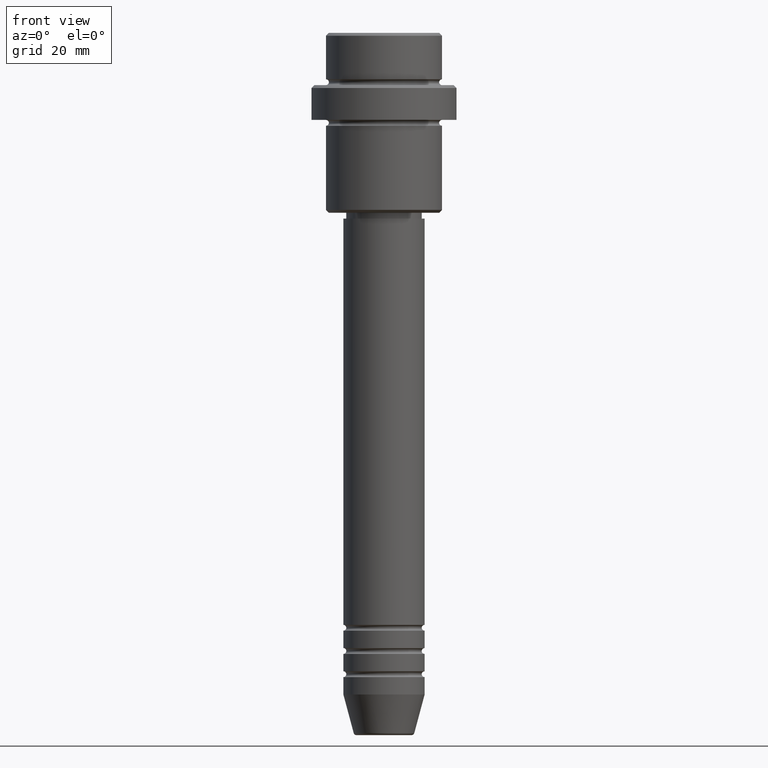
[diagram: clean part render]
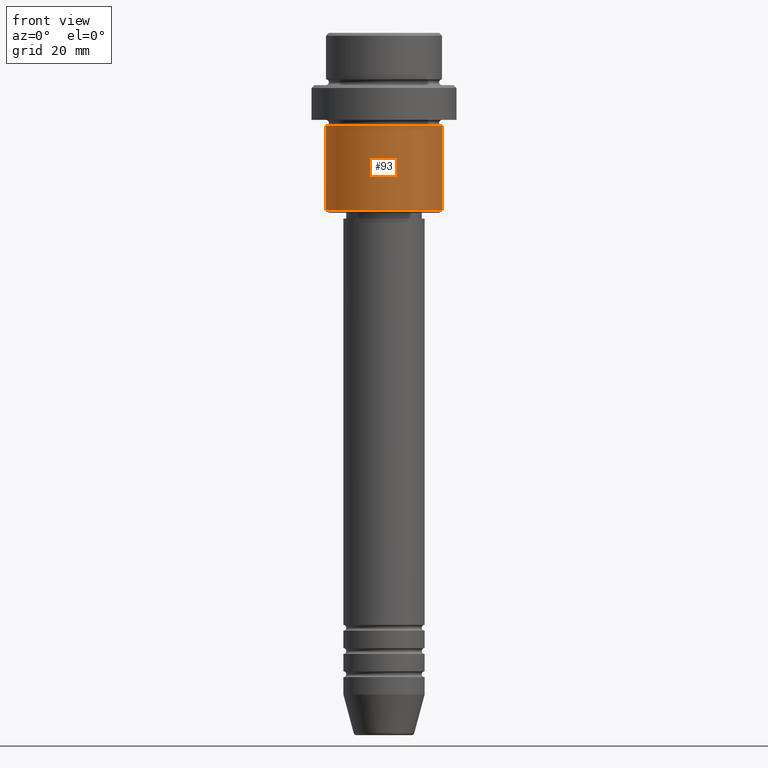
[diagram: same view with one face highlighted and labeled with its STEP entity id]
A machine part, front view. The second image highlights one B-rep face of the part: STEP entity #93.
In plain terms, the highlighted cylindrical surface (partial cylindrical patch) has radius 10 mm, axis along (-0, -0, 1).
Its self-contained STEP definition (entity closure, byte-faithful):
#56 = DIRECTION ( 'NONE',  ( -0.000000000000000000, -0.000000000000000000, 1.000000000000000000 ) ) ;
#93 = ADVANCED_FACE ( 'NONE', ( #699 ), #812, .T. ) ;
#98 = AXIS2_PLACEMENT_3D ( 'NONE', #1029, #56, #1365 ) ;
#121 = ORIENTED_EDGE ( 'NONE', *, *, #505, .F. ) ;
#144 = DIRECTION ( 'NONE',  ( 1.000000000000000000, 0.000000000000000000, 0.000000000000000000 ) ) ;
#173 = DIRECTION ( 'NONE',  ( -0.000000000000000000, -0.000000000000000000, 1.000000000000000000 ) ) ;
#195 = EDGE_CURVE ( 'NONE', #841, #1065, #931, .T. ) ;
#205 = CARTESIAN_POINT ( 'NONE',  ( -9.999999999999998224, 1.224646799147353059E-15, -16.00000000000000000 ) ) ;
#206 = CARTESIAN_POINT ( 'NONE',  ( 9.999999999999998224, 0.000000000000000000, -30.49999999999998934 ) ) ;
#258 = CARTESIAN_POINT ( 'NONE',  ( -9.999999999999998224, 1.224646799147353059E-15, -30.49999999999998934 ) ) ;
#294 = EDGE_CURVE ( 'NONE', #1251, #841, #1074, .T. ) ;
#314 = ORIENTED_EDGE ( 'NONE', *, *, #195, .T. ) ;
#391 = CARTESIAN_POINT ( 'NONE',  ( -9.999999999999998224, 1.224646799147353059E-15, 0.000000000000000000 ) ) ;
#453 = CARTESIAN_POINT ( 'NONE',  ( 0.000000000000000000, 0.000000000000000000, -16.00000000000000000 ) ) ;
#487 = CIRCLE ( 'NONE', #1351, 9.999999999999998224 ) ;
#505 = EDGE_CURVE ( 'NONE', #1366, #1065, #487, .T. ) ;
#646 = DIRECTION ( 'NONE',  ( -0.000000000000000000, -0.000000000000000000, 1.000000000000000000 ) ) ;
#699 = FACE_OUTER_BOUND ( 'NONE', #1141, .T. ) ;
#762 = ORIENTED_EDGE ( 'NONE', *, *, #1225, .F. ) ;
#768 = ORIENTED_EDGE ( 'NONE', *, *, #294, .T. ) ;
#801 = VECTOR ( 'NONE', #1152, 1000.000000000000000 ) ;
#812 = CYLINDRICAL_SURFACE ( 'NONE', #98, 9.999999999999998224 ) ;
#841 = VERTEX_POINT ( 'NONE', #206 ) ;
#926 = CARTESIAN_POINT ( 'NONE',  ( 9.999999999999998224, 0.000000000000000000, 0.000000000000000000 ) ) ;
#931 = LINE ( 'NONE', #926, #1121 ) ;
#1029 = CARTESIAN_POINT ( 'NONE',  ( 0.000000000000000000, 0.000000000000000000, 0.000000000000000000 ) ) ;
#1031 = AXIS2_PLACEMENT_3D ( 'NONE', #1089, #646, #1066 ) ;
#1065 = VERTEX_POINT ( 'NONE', #1198 ) ;
#1066 = DIRECTION ( 'NONE',  ( -1.000000000000000000, 0.000000000000000000, 0.000000000000000000 ) ) ;
#1074 = CIRCLE ( 'NONE', #1031, 9.999999999999998224 ) ;
#1089 = CARTESIAN_POINT ( 'NONE',  ( 0.000000000000000000, 0.000000000000000000, -30.49999999999998934 ) ) ;
#1121 = VECTOR ( 'NONE', #173, 1000.000000000000000 ) ;
#1141 = EDGE_LOOP ( 'NONE', ( #762, #768, #314, #121 ) ) ;
#1143 = LINE ( 'NONE', #391, #801 ) ;
#1152 = DIRECTION ( 'NONE',  ( -0.000000000000000000, -0.000000000000000000, 1.000000000000000000 ) ) ;
#1198 = CARTESIAN_POINT ( 'NONE',  ( 9.999999999999998224, 0.000000000000000000, -16.00000000000000000 ) ) ;
#1225 = EDGE_CURVE ( 'NONE', #1251, #1366, #1143, .T. ) ;
#1232 = DIRECTION ( 'NONE',  ( -0.000000000000000000, -0.000000000000000000, 1.000000000000000000 ) ) ;
#1251 = VERTEX_POINT ( 'NONE', #258 ) ;
#1351 = AXIS2_PLACEMENT_3D ( 'NONE', #453, #1232, #144 ) ;
#1365 = DIRECTION ( 'NONE',  ( 1.000000000000000000, 0.000000000000000000, 0.000000000000000000 ) ) ;
#1366 = VERTEX_POINT ( 'NONE', #205 ) ;